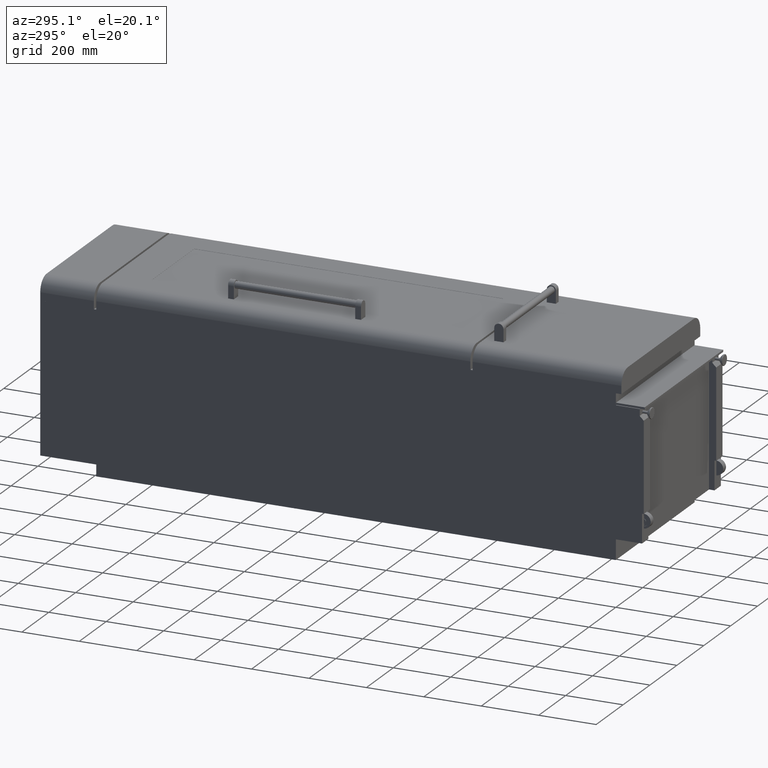
[diagram: clean part render]
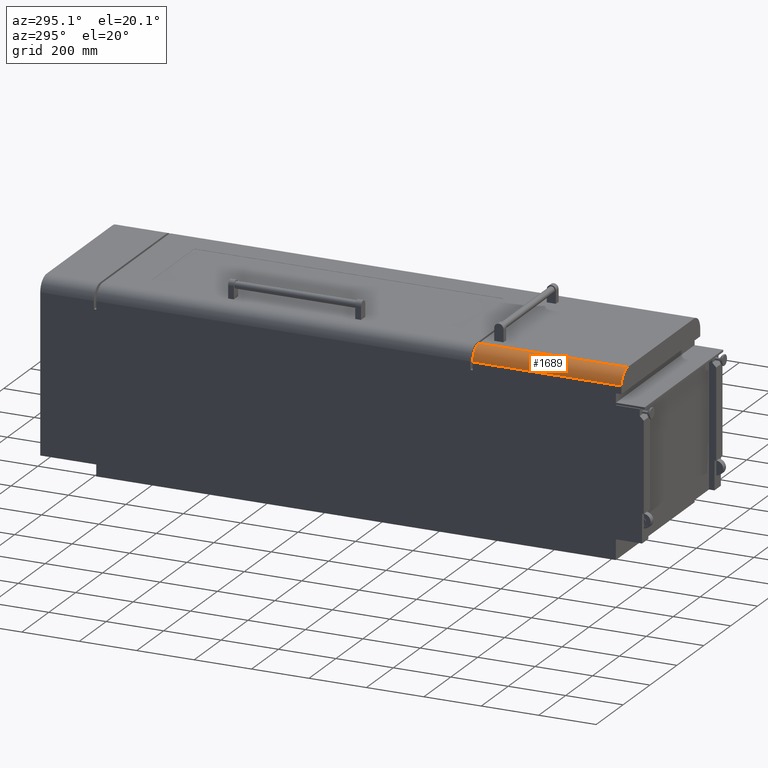
[diagram: same view with one face highlighted and labeled with its STEP entity id]
A machine part, auxiliary view. The second image highlights one B-rep face of the part: STEP entity #1689.
In plain terms, the highlighted cylindrical surface (edge-blend (fillet) strip) has radius 47 mm, axis along (0, -1, 0).
Its self-contained STEP definition (entity closure, byte-faithful):
#488 = CYLINDRICAL_SURFACE ( 'NONE', #4802, 46.99999999999998600 ) ;
#536 = EDGE_CURVE ( 'NONE', #2717, #2675, #2928, .T. ) ;
#569 = DIRECTION ( 'NONE',  ( 0.0000000000000000000, 0.0000000000000000000, 1.000000000000000000 ) ) ;
#634 = CARTESIAN_POINT ( 'NONE',  ( -293.0000000000000000, -875.6499999999998600, 308.0000000000001100 ) ) ;
#723 = ORIENTED_EDGE ( 'NONE', *, *, #3399, .F. ) ;
#836 = EDGE_CURVE ( 'NONE', #2675, #4254, #3750, .T. ) ;
#908 = DIRECTION ( 'NONE',  ( 0.0000000000000000000, -1.000000000000000000, 0.0000000000000000000 ) ) ;
#1044 = VECTOR ( 'NONE', #2286, 1000.000000000000000 ) ;
#1072 = ORIENTED_EDGE ( 'NONE', *, *, #836, .F. ) ;
#1139 = CARTESIAN_POINT ( 'NONE',  ( -246.0000000000000000, -875.6499999999998600, 355.0000000000001100 ) ) ;
#1557 = EDGE_CURVE ( 'NONE', #4254, #2887, #4775, .T. ) ;
#1670 = CARTESIAN_POINT ( 'NONE',  ( -246.0000000000000000, 0.0000000000000000000, 308.0000000000001100 ) ) ;
#1689 = ADVANCED_FACE ( 'NONE', ( #3862 ), #488, .T. ) ;
#1726 = ORIENTED_EDGE ( 'NONE', *, *, #1557, .F. ) ;
#2027 = CARTESIAN_POINT ( 'NONE',  ( -246.0000000000000000, -357.6499999999999200, 308.0000000000001100 ) ) ;
#2072 = CARTESIAN_POINT ( 'NONE',  ( -293.0000000000000000, -357.6499999999999200, 308.0000000000001100 ) ) ;
#2162 = CARTESIAN_POINT ( 'NONE',  ( -246.0000000000000000, -875.6499999999998600, 308.0000000000001100 ) ) ;
#2175 = VECTOR ( 'NONE', #2231, 1000.000000000000000 ) ;
#2231 = DIRECTION ( 'NONE',  ( 0.0000000000000000000, -1.000000000000000000, 0.0000000000000000000 ) ) ;
#2286 = DIRECTION ( 'NONE',  ( -0.0000000000000000000, 1.000000000000000000, -0.0000000000000000000 ) ) ;
#2528 = EDGE_LOOP ( 'NONE', ( #1072, #3951, #723, #1726 ) ) ;
#2533 = DIRECTION ( 'NONE',  ( 0.0000000000000000000, 0.0000000000000000000, -1.000000000000000000 ) ) ;
#2675 = VERTEX_POINT ( 'NONE', #2072 ) ;
#2717 = VERTEX_POINT ( 'NONE', #634 ) ;
#2887 = VERTEX_POINT ( 'NONE', #1139 ) ;
#2928 = LINE ( 'NONE', #4738, #1044 ) ;
#3034 = CARTESIAN_POINT ( 'NONE',  ( -246.0000000000000000, 0.0000000000000000000, 355.0000000000001100 ) ) ;
#3164 = CARTESIAN_POINT ( 'NONE',  ( -246.0000000000000000, -357.6499999999999200, 355.0000000000001100 ) ) ;
#3204 = DIRECTION ( 'NONE',  ( -9.472892701579833100E-017, 1.000000000000000000, -0.0000000000000000000 ) ) ;
#3351 = AXIS2_PLACEMENT_3D ( 'NONE', #2027, #3204, #3597 ) ;
#3399 = EDGE_CURVE ( 'NONE', #2887, #2717, #3577, .T. ) ;
#3577 = CIRCLE ( 'NONE', #4057, 46.99999999999998600 ) ;
#3597 = DIRECTION ( 'NONE',  ( 1.000000000000000000, 0.0000000000000000000, 0.0000000000000000000 ) ) ;
#3748 = DIRECTION ( 'NONE',  ( -0.0000000000000000000, -1.000000000000000000, -0.0000000000000000000 ) ) ;
#3750 = CIRCLE ( 'NONE', #3351, 46.99999999999998600 ) ;
#3862 = FACE_OUTER_BOUND ( 'NONE', #2528, .T. ) ;
#3951 = ORIENTED_EDGE ( 'NONE', *, *, #536, .F. ) ;
#4057 = AXIS2_PLACEMENT_3D ( 'NONE', #2162, #3748, #569 ) ;
#4254 = VERTEX_POINT ( 'NONE', #3164 ) ;
#4738 = CARTESIAN_POINT ( 'NONE',  ( -293.0000000000000000, -875.6499999999998600, 308.0000000000001100 ) ) ;
#4775 = LINE ( 'NONE', #3034, #2175 ) ;
#4802 = AXIS2_PLACEMENT_3D ( 'NONE', #1670, #908, #2533 ) ;